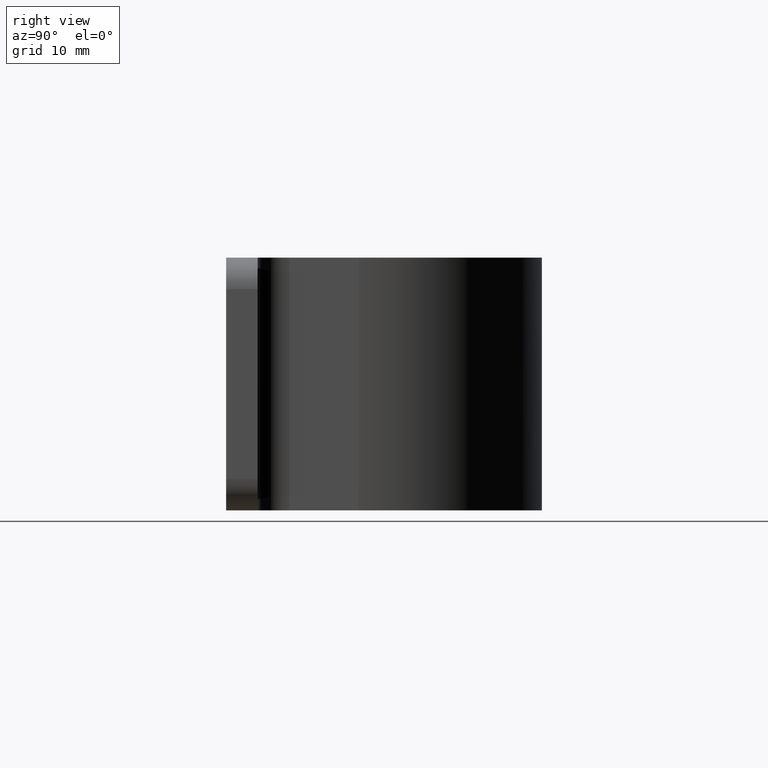
[diagram: clean part render]
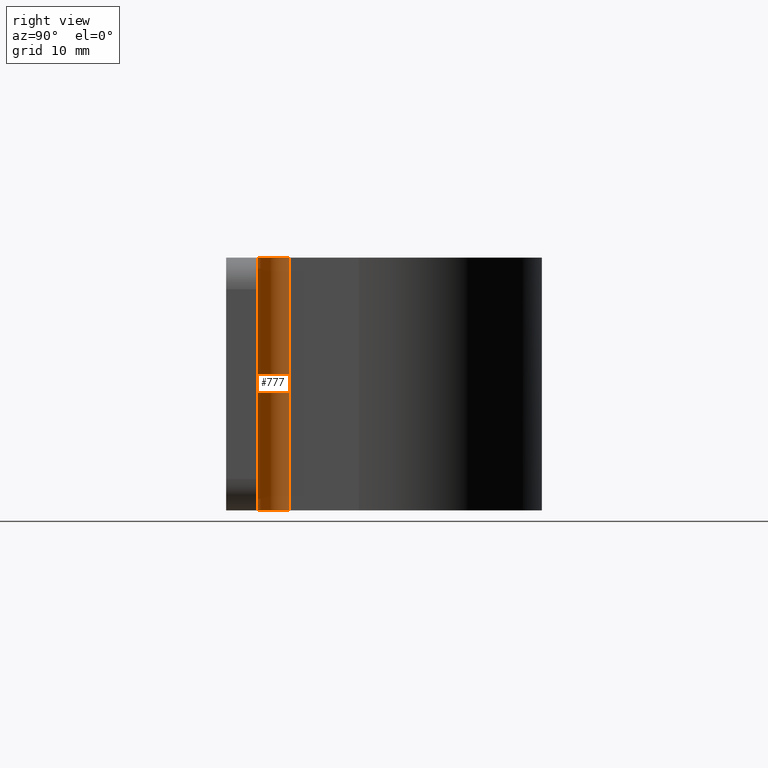
[diagram: same view with one face highlighted and labeled with its STEP entity id]
A machine part, right view. The second image highlights one B-rep face of the part: STEP entity #777.
In plain terms, the highlighted cylindrical surface (edge-blend (fillet) strip) has radius 5 mm, axis along (0, -0, -1).
Its self-contained STEP definition (entity closure, byte-faithful):
#81 = CYLINDRICAL_SURFACE ( 'NONE', #364, 5.000000000000004441 ) ;
#85 = FACE_OUTER_BOUND ( 'NONE', #164, .T. ) ;
#147 = VERTEX_POINT ( 'NONE', #646 ) ;
#157 = EDGE_CURVE ( 'NONE', #147, #280, #774, .T. ) ;
#164 = EDGE_LOOP ( 'NONE', ( #463, #810, #378, #606 ) ) ;
#232 = CARTESIAN_POINT ( 'NONE',  ( 34.00000000000025580, 8.000000000000229150, 19.99999999999957367 ) ) ;
#263 = VECTOR ( 'NONE', #369, 1000.000000000000000 ) ;
#270 = DIRECTION ( 'NONE',  ( 1.000000000000000000, 0.000000000000000000, 0.000000000000000000 ) ) ;
#280 = VERTEX_POINT ( 'NONE', #353 ) ;
#304 = VERTEX_POINT ( 'NONE', #715 ) ;
#328 = DIRECTION ( 'NONE',  ( 1.000000000000000000, 0.000000000000000000, 0.000000000000000000 ) ) ;
#330 = VECTOR ( 'NONE', #452, 1000.000000000000000 ) ;
#349 = DIRECTION ( 'NONE',  ( 8.326672684688671588E-17, -1.942890293094023453E-16, -1.000000000000000000 ) ) ;
#353 = CARTESIAN_POINT ( 'NONE',  ( 34.00000000000025580, 8.000000000000451195, -20.00000000000090594 ) ) ;
#364 = AXIS2_PLACEMENT_3D ( 'NONE', #733, #349, #604 ) ;
#369 = DIRECTION ( 'NONE',  ( 8.326672684688671588E-17, -1.942890293094023453E-16, -1.000000000000000000 ) ) ;
#371 = EDGE_CURVE ( 'NONE', #304, #427, #736, .T. ) ;
#378 = ORIENTED_EDGE ( 'NONE', *, *, #371, .T. ) ;
#381 = DIRECTION ( 'NONE',  ( -8.326672684688671588E-17, 1.942890293094023453E-16, 1.000000000000000000 ) ) ;
#404 = EDGE_CURVE ( 'NONE', #427, #280, #440, .T. ) ;
#427 = VERTEX_POINT ( 'NONE', #232 ) ;
#428 = AXIS2_PLACEMENT_3D ( 'NONE', #641, #381, #328 ) ;
#440 = LINE ( 'NONE', #744, #263 ) ;
#452 = DIRECTION ( 'NONE',  ( 8.326672684688671588E-17, -1.942890293094023453E-16, -1.000000000000000000 ) ) ;
#463 = ORIENTED_EDGE ( 'NONE', *, *, #157, .F. ) ;
#478 = CARTESIAN_POINT ( 'NONE',  ( 34.00000000000025580, 13.00000000000034461, 19.99999999999868550 ) ) ;
#513 = CARTESIAN_POINT ( 'NONE',  ( 29.00000000000035882, 12.99999999999990052, 19.99999999999957367 ) ) ;
#604 = DIRECTION ( 'NONE',  ( -1.000000000000000000, 0.000000000000000000, 0.000000000000000000 ) ) ;
#606 = ORIENTED_EDGE ( 'NONE', *, *, #404, .T. ) ;
#634 = EDGE_CURVE ( 'NONE', #304, #147, #839, .T. ) ;
#641 = CARTESIAN_POINT ( 'NONE',  ( 33.99999999999980815, 13.00000000000012257, -20.00000000000090594 ) ) ;
#646 = CARTESIAN_POINT ( 'NONE',  ( 29.00000000000035882, 13.00000000000012257, -20.00000000000135003 ) ) ;
#672 = DIRECTION ( 'NONE',  ( -8.326672684688671588E-17, 1.942890293094023453E-16, 1.000000000000000000 ) ) ;
#683 = AXIS2_PLACEMENT_3D ( 'NONE', #478, #672, #270 ) ;
#715 = CARTESIAN_POINT ( 'NONE',  ( 29.00000000000035882, 12.99999999999990052, 19.99999999999957367 ) ) ;
#733 = CARTESIAN_POINT ( 'NONE',  ( 34.00000000000025580, 13.00000000000034461, 19.99999999999868550 ) ) ;
#736 = CIRCLE ( 'NONE', #683, 5.000000000000004441 ) ;
#744 = CARTESIAN_POINT ( 'NONE',  ( 34.00000000000025580, 8.000000000000229150, 19.99999999999957367 ) ) ;
#774 = CIRCLE ( 'NONE', #428, 5.000000000000004441 ) ;
#777 = ADVANCED_FACE ( 'NONE', ( #85 ), #81, .F. ) ;
#810 = ORIENTED_EDGE ( 'NONE', *, *, #634, .F. ) ;
#839 = LINE ( 'NONE', #513, #330 ) ;